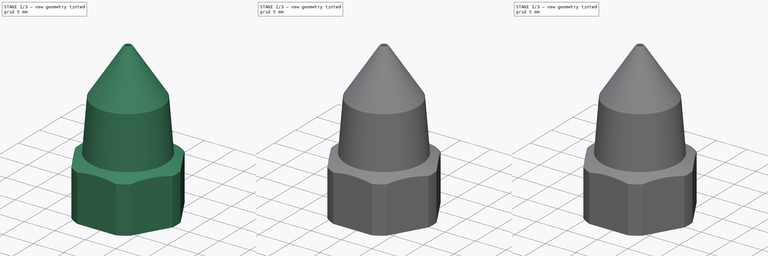
[diagram: build sequence overview — one tinted view per stage of 3, left to right]
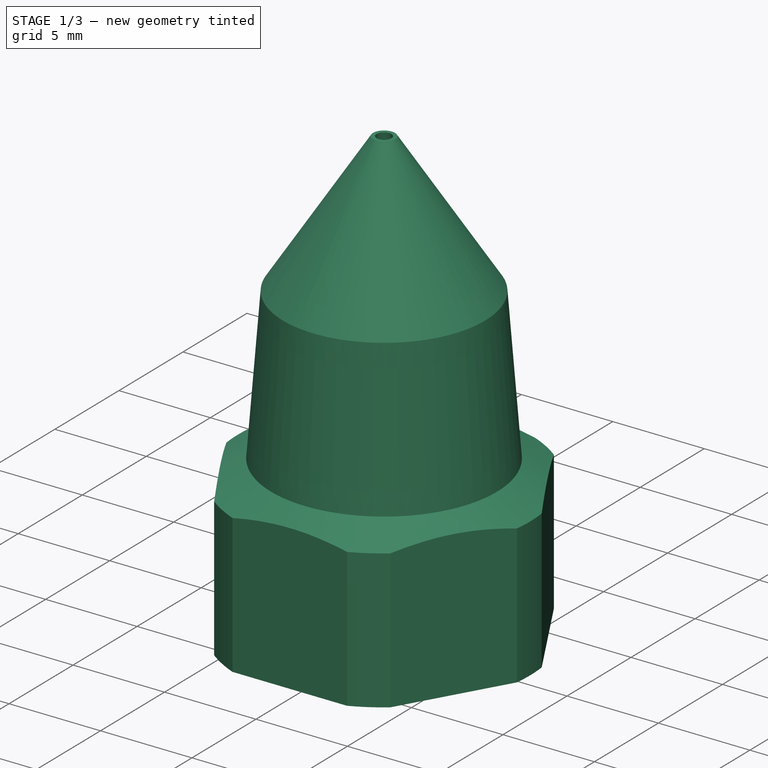
[diagram: stage 1 of 3 — iso view after this stage's code; geometry added in this stage tinted green]
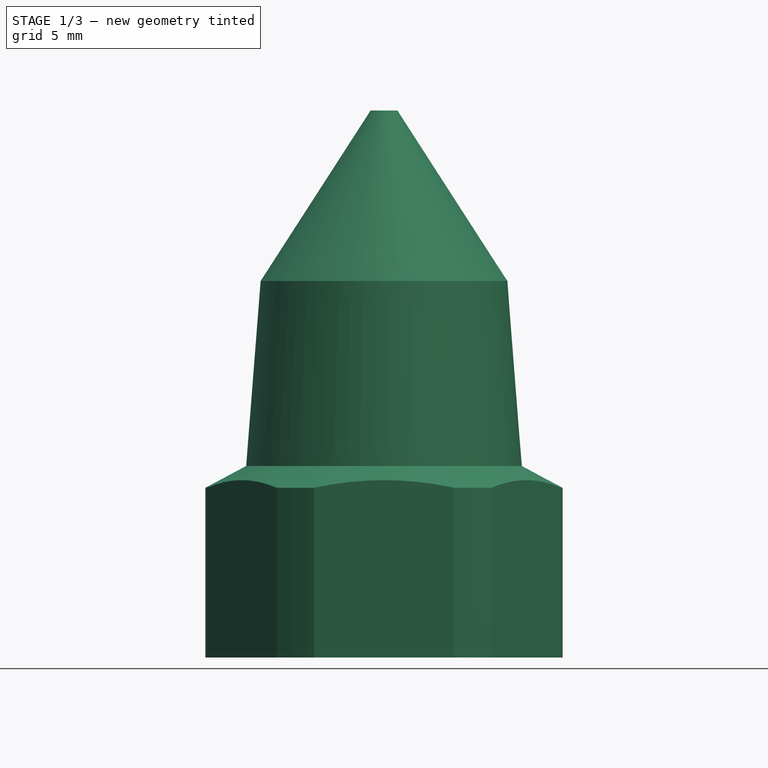
[diagram: stage 1 of 3 — front view after this stage's code; geometry added in this stage tinted green]
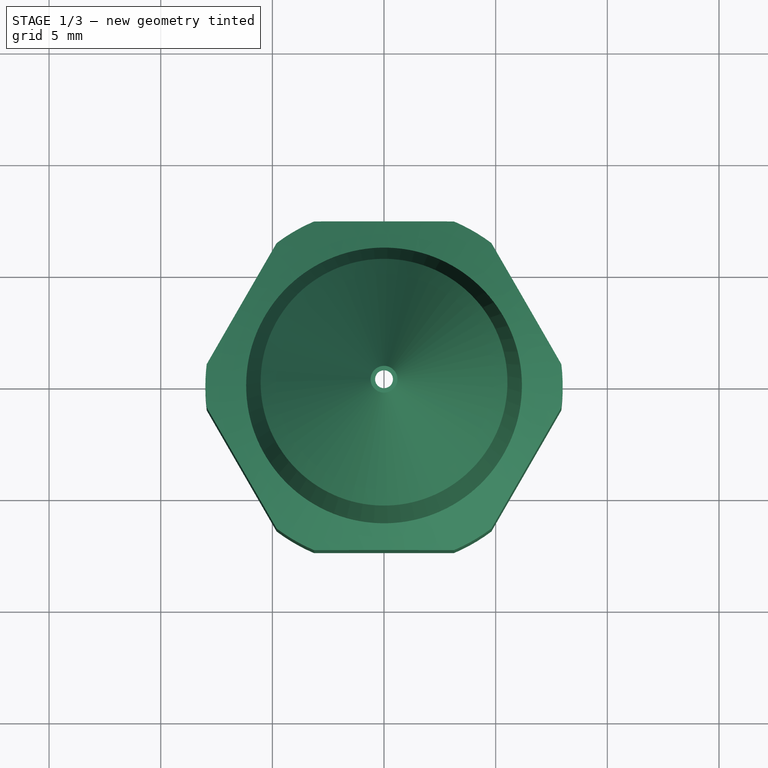
[diagram: stage 1 of 3 — top view after this stage's code; geometry added in this stage tinted green]
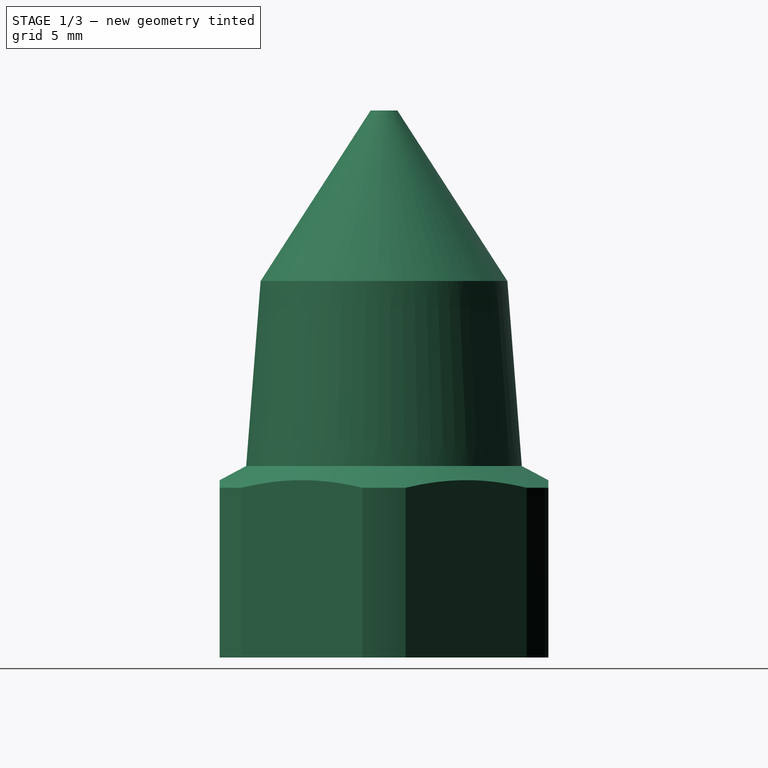
[diagram: stage 1 of 3 — right view after this stage's code; geometry added in this stage tinted green]
FCSTD DOCUMENT  (FreeCAD 0.18R15969 (Git))
Label: glue_adapter_1
License: All rights reserved
LicenseURL: http://en.wikipedia.org/wiki/All_rights_reserved
objects: Sketcher::SketchObject×6, PartDesign::Revolution×5, PartDesign::Pocket×1, PartDesign::Body×1
note: 19 computed .brp shape members not serialized (recipe doc carries the construction recipe); baked Part::Feature solids carry a one-line shape summary decoded from their .brp

FEATURE [Sketcher::SketchObject] Sketch
  MapMode = 5
  Placement = pos=(0,0,0) rot=(1,0,0;1.5708rad)
  Support = -> [XZ_Plane]
  sketch-geometry (14):
    g0: LineSegment StartX=-5.3 StartY=0 StartZ=0 EndX=-5.3 EndY=6 EndZ=0
    g1: LineSegment StartX=-5.3 StartY=0 StartZ=0 EndX=-8 EndY=0 EndZ=0
    g2: ArcOfCircle CenterX=-5.3 CenterY=7.55476 CenterZ=0 NormalX=0 NormalY=0 NormalZ=1 AngleXU=0 Radius=1.55476 StartAngle=4.71239 EndAngle=6.20495
    g3: LineSegment [constr] StartX=-5.3 StartY=7.55476 StartZ=0 EndX=-5.3 EndY=6 EndZ=0
    g4: LineSegment [constr] StartX=-5.3 StartY=7.55476 StartZ=0 EndX=-3.75 EndY=7.43324 EndZ=0
    g5: LineSegment StartX=-3.75 StartY=7.43324 StartZ=0 EndX=-3 EndY=17 EndZ=0
    g6: LineSegment StartX=-3 StartY=17 StartZ=0 EndX=-1.75 EndY=20.5 EndZ=0
    g7: LineSegment StartX=-1.75 StartY=20.5 StartZ=0 EndX=-1.25 EndY=20.5 EndZ=0
    g8: LineSegment StartX=-1.25 StartY=20.5 StartZ=0 EndX=-0.4 EndY=24.5 EndZ=0
    g9: LineSegment StartX=-0.4 StartY=24.5 StartZ=0 EndX=-0.6 EndY=24.5 EndZ=0
    g10: LineSegment StartX=-5.52656 StartY=16.8627 StartZ=0 EndX=-0.6 EndY=24.5 EndZ=0
    g11: LineSegment StartX=-5.52656 StartY=16.8627 StartZ=0 EndX=-6.17406 EndY=8.57815 EndZ=0
    g12: LineSegment StartX=-6.17406 StartY=8.57815 StartZ=0 EndX=-8 EndY=7.60349 EndZ=0
    g13: LineSegment StartX=-8 StartY=7.60349 StartZ=0 EndX=-8 EndY=0 EndZ=0
  constraints (35):
    c: PointOnObject(g0,g-1)
    c: Vertical(g0)
    c: DistanceX(g0,g-1) = 5.3
    c: DistanceY(g0,g0) = 6
    c: Coincident(g1,g0)
    c: Horizontal(g1)
    c: DistanceX(g1,g-1) = 8
    c: Coincident(g2,g0)
    c: Coincident(g3,g2)
    c: Coincident(g3,g0)
    c: Coincident(g4,g2)
    c: Coincident(g4,g2)
    c: Vertical(g3)
    c: DistanceX(g2,g-1) = 3.75
    c: DistanceX(g5,g-1) = 3
    c: Tangent(g5,g2) = -1.5708
    c: DistanceY(g0,g5) = 11
    c: Coincident(g6,g5)
    c: Coincident(g7,g6)
    c: Horizontal(g7)
    c: DistanceY(g6,g6) = 3.5
    c: DistanceX(g6,g-1) = 1.75
    c: DistanceX(g7,g7) = 0.5
    c: Coincident(g8,g7)
    c: DistanceX(g8,g-1) = 0.4
    c: Coincident(g9,g8)
    c: Horizontal(g9)
    c: DistanceX(g9,g9) = 0.2
    c: Coincident(g10,g9)
    c: DistanceY(g8,g8) = 4
    c: Coincident(g11,g10)
    c: Coincident(g12,g11)
    c: Coincident(g13,g12)
    c: Coincident(g13,g1)
    c: Vertical(g13)
FEATURE [PartDesign::Revolution] Revolution
  Angle = 360
  Axis = (0,2e-16,1)
  Base = (0,0,0)
  Placement = pos=(0,0,0) rot=(1,0,0;1.5708rad)
  Profile = -> Sketch
  ReferenceAxis = -> Sketch [V_Axis]
  Refine = true
FEATURE [Sketcher::SketchObject] Sketch001
  MapMode = 5
  Placement = pos=(0,0,0) rot=(1,0,0;3.14159rad)
  Support = -> [Revolution]
  sketch-geometry (8):
    g0: LineSegment StartX=8.5 StartY=0 StartZ=0 EndX=4.25 EndY=7.36122 EndZ=0
    g1: LineSegment StartX=4.25 StartY=7.36122 StartZ=0 EndX=-4.25 EndY=7.36122 EndZ=0
    g2: LineSegment StartX=-4.25 StartY=7.36122 StartZ=0 EndX=-8.5 EndY=9e-16 EndZ=0
    g3: LineSegment StartX=-8.5 StartY=5e-16 StartZ=0 EndX=-4.25 EndY=-7.36122 EndZ=0
    g4: LineSegment StartX=-4.25 StartY=-7.36122 StartZ=0 EndX=4.25 EndY=-7.36122 EndZ=0
    g5: LineSegment StartX=4.25 StartY=-7.36122 StartZ=0 EndX=8.5 EndY=0 EndZ=0
    g6: Circle [constr] CenterX=0 CenterY=0 CenterZ=0 NormalX=0 NormalY=0 NormalZ=1 AngleXU=0 Radius=8.5
    g7: Circle CenterX=0 CenterY=0 CenterZ=0 NormalX=0 NormalY=0 NormalZ=1 AngleXU=0 Radius=14.2915
  constraints (17):
    c: Coincident(g0,g1)
    c: Coincident(g1,g2)
    c: Coincident(g2,g3)
    c: Coincident(g3,g4)
    c: Coincident(g4,g5)
    c: Coincident(g5,g0)
    c: Equal(g0, g1-g5) x5
    c: PointOnObject(g0,g6)
    c: PointOnObject(g1,g6)
    c: PointOnObject(g2,g6)
    c: PointOnObject(g3,g6)
    c: PointOnObject(g4,g6)
    c: PointOnObject(g5,g6)
    c: Coincident(g6,g-1)
    c: PointOnObject(g5,g-1)
    c: DistanceX(g2,g0) = 17
    c: Coincident(g7,g-1)
FEATURE [PartDesign::Pocket] Pocket
  BaseFeature = -> Revolution
  Length = 5
  Length2 = 100
  Placement = pos=(0,0,0) rot=(1,0,0;1.5708rad)
  Profile = -> Sketch001
  Refine = true
  Type = 1
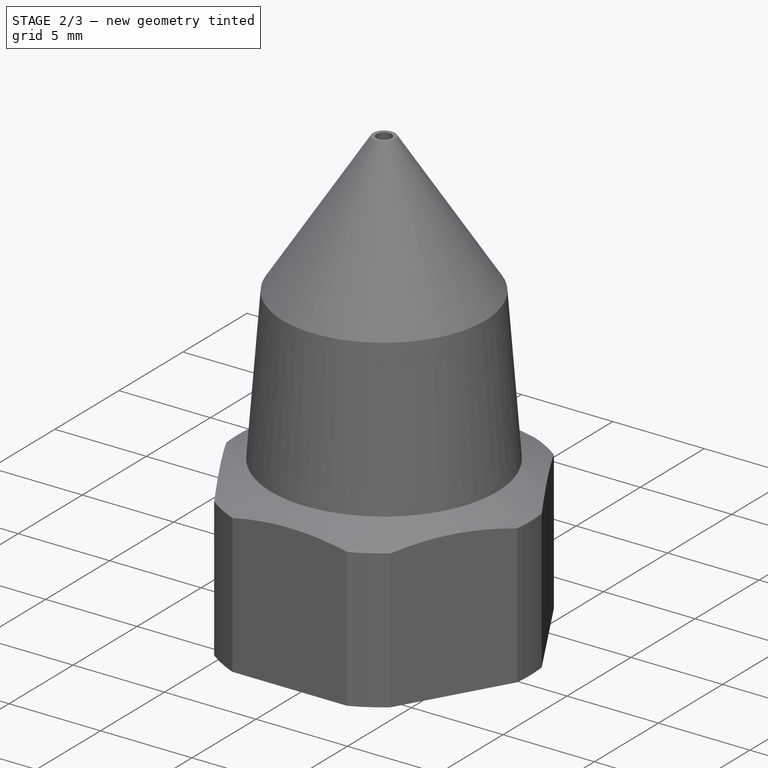
[diagram: stage 2 of 3 — iso view after this stage's code; geometry added in this stage tinted green]
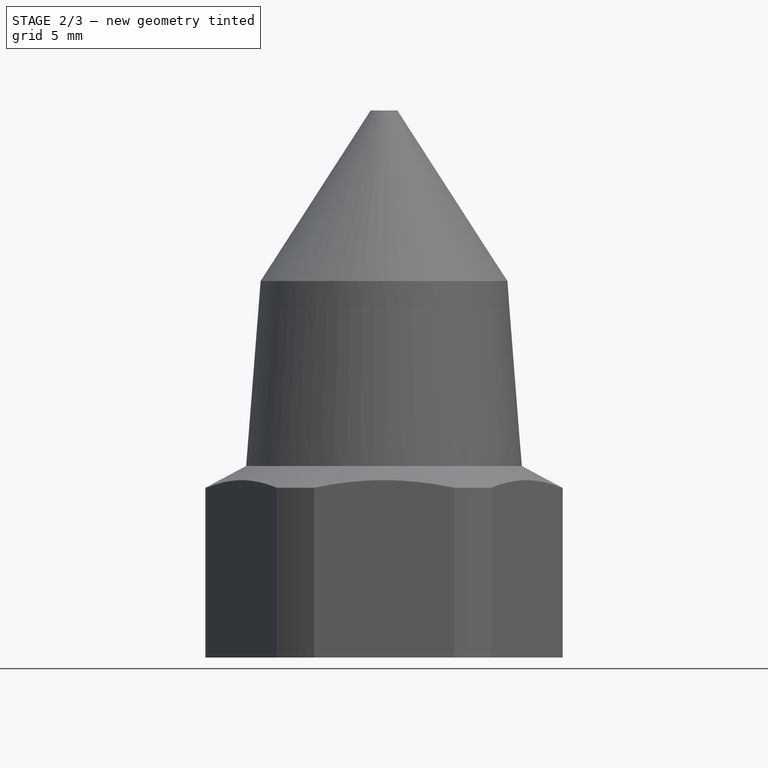
[diagram: stage 2 of 3 — front view after this stage's code; geometry added in this stage tinted green]
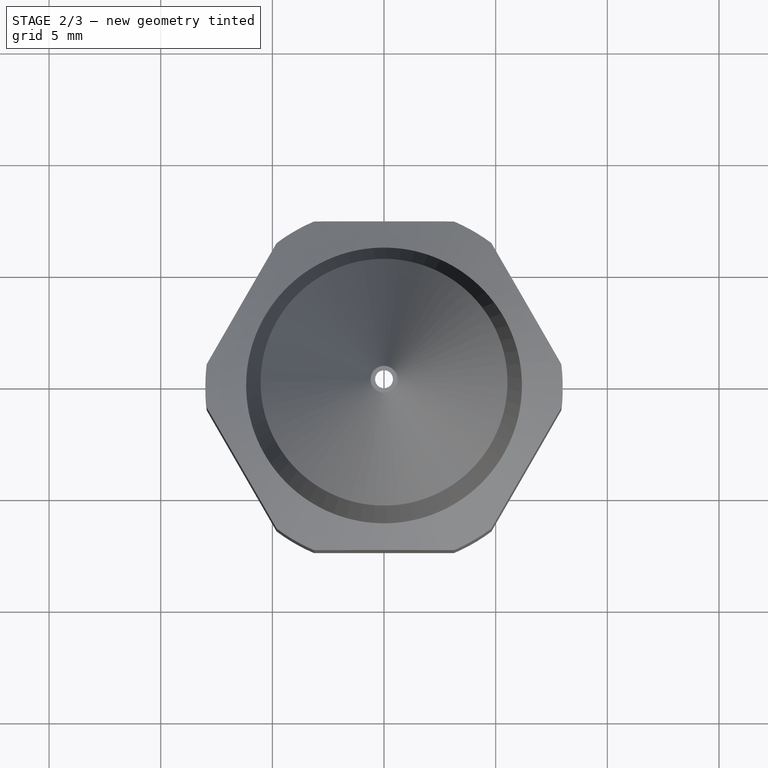
[diagram: stage 2 of 3 — top view after this stage's code; geometry added in this stage tinted green]
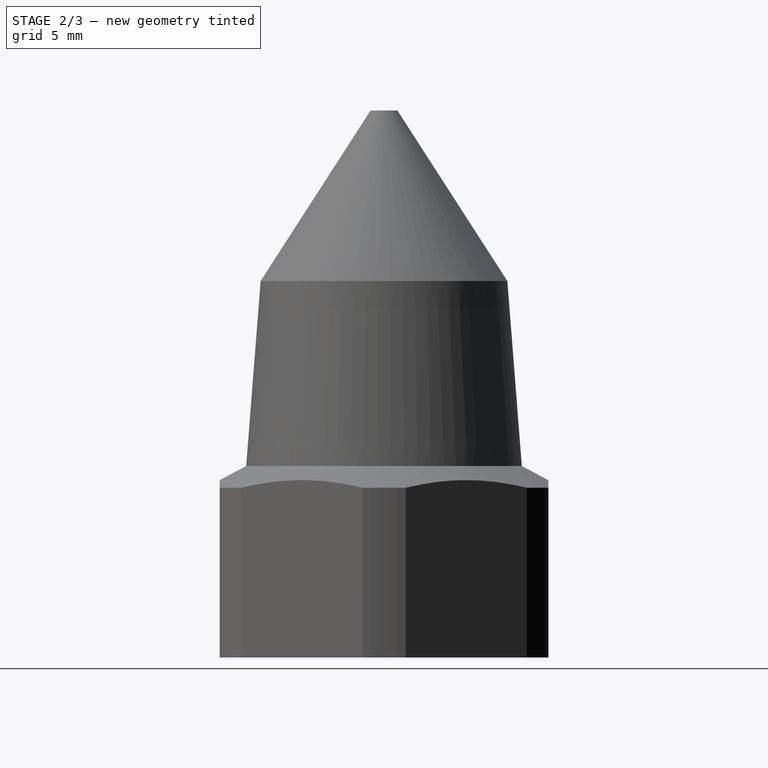
[diagram: stage 2 of 3 — right view after this stage's code; geometry added in this stage tinted green]
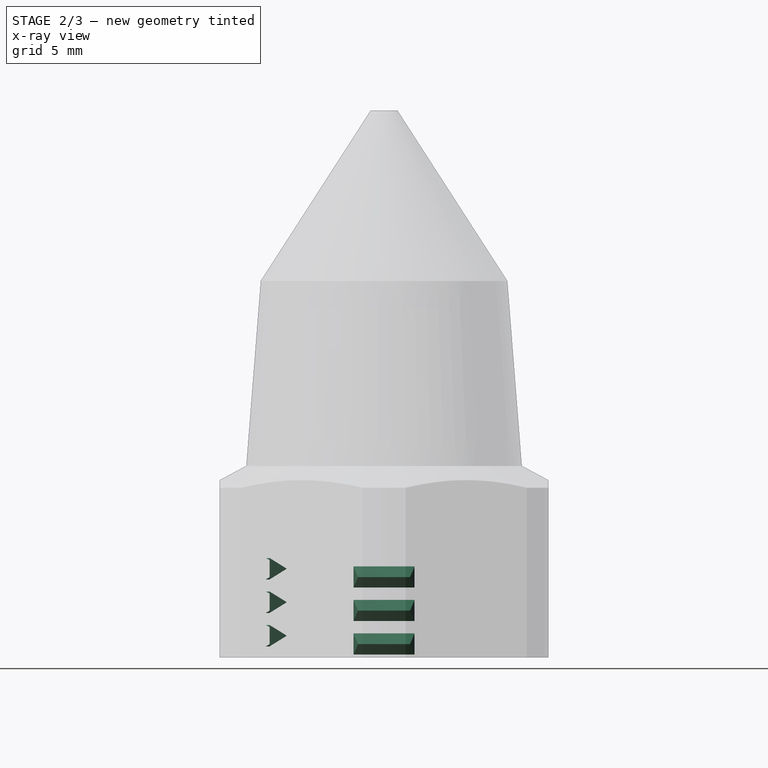
[diagram: stage 2 of 3 — x-ray composite at the right view; earlier geometry ghosted, this stage's added geometry solid]
FEATURE [Sketcher::SketchObject] Sketch002
  MapMode = 5
  Placement = pos=(0,0,0) rot=(1,0,0;1.5708rad)
  Support = -> [XZ_Plane]
  sketch-geometry (17):
    g0: LineSegment StartX=-5.5 StartY=0 StartZ=0 EndX=-4.5 EndY=0.6 EndZ=0
    g1: LineSegment StartX=-4.5 StartY=0.6 StartZ=0 EndX=-5.5 EndY=1.2 EndZ=0
    g2: LineSegment StartX=-5.5 StartY=0 StartZ=0 EndX=-6.5 EndY=0 EndZ=0
    g3: LineSegment StartX=-6.5 StartY=0 StartZ=0 EndX=-6.5 EndY=1.2 EndZ=0
    g4: LineSegment StartX=-6.5 StartY=1.2 StartZ=0 EndX=-5.5 EndY=1.2 EndZ=0
    g5: LineSegment StartX=-5.5 StartY=1.5 StartZ=0 EndX=-4.5 EndY=2.1 EndZ=0
    g6: LineSegment StartX=-4.5 StartY=2.1 StartZ=0 EndX=-5.5 EndY=2.7 EndZ=0
    g7: LineSegment StartX=-5.5 StartY=1.5 StartZ=0 EndX=-6.5 EndY=1.5 EndZ=0
    g8: LineSegment StartX=-6.5 StartY=1.5 StartZ=0 EndX=-6.5 EndY=2.7 EndZ=0
    g9: LineSegment StartX=-6.5 StartY=2.7 StartZ=0 EndX=-5.5 EndY=2.7 EndZ=0
    g10: LineSegment [constr] StartX=-5.5 StartY=0 StartZ=0 EndX=-5.5 EndY=1.5 EndZ=0
    g11: LineSegment StartX=-5.5 StartY=3 StartZ=0 EndX=-4.5 EndY=3.6 EndZ=0
    g12: LineSegment StartX=-4.5 StartY=3.6 StartZ=0 EndX=-5.5 EndY=4.2 EndZ=0
    g13: LineSegment StartX=-5.5 StartY=3 StartZ=0 EndX=-6.5 EndY=3 EndZ=0
    g14: LineSegment StartX=-6.5 StartY=3 StartZ=0 EndX=-6.5 EndY=4.2 EndZ=0
    g15: LineSegment StartX=-6.5 StartY=4.2 StartZ=0 EndX=-5.5 EndY=4.2 EndZ=0
    g16: LineSegment [constr] StartX=-5.5 StartY=1.5 StartZ=0 EndX=-5.5 EndY=3 EndZ=0
  constraints (49):
    c: PointOnObject(g0,g-1)
    c: Coincident(g1,g0)
    c: Coincident(g2,g0)
    c: PointOnObject(g2,g-1)
    c: Coincident(g3,g2)
    c: Coincident(g4,g3)
    c: Coincident(g4,g1)
    c: Horizontal(g4)
    c: Equal(g2,g4)
    c: Equal(g0,g1)
    c: Vertical(g3)
    c: DistanceX(g0,g0) = 1
    c: DistanceX(g0,g-1) = 5.5
    c: Coincident(g6,g5)
    c: Coincident(g7,g5)
    c: Coincident(g8,g7)
    c: Coincident(g9,g8)
    c: Coincident(g9,g6)
    c: Horizontal(g9)
    c: Equal(g7,g9)
    c: Equal(g5,g6)
    c: Vertical(g8)
    c: DistanceX(g5,g5) = 1
    c: Coincident(g0,g10)
    c: Coincident(g5,g10)
    c: Distance(g10) = 1.5
    c: Angle(g10) = 1.5708
    c: Coincident(g12,g11)
    c: Coincident(g13,g11)
    c: Coincident(g14,g13)
    c: Coincident(g15,g14)
    c: Coincident(g15,g12)
    c: Horizontal(g15)
    c: Equal(g13,g15)
    c: Equal(g11,g12)
    c: Vertical(g14)
    c: DistanceX(g11,g11) = 1
    c: Coincident(g5,g16)
    c: Coincident(g11,g16)
    c: Equal(g10,g16)
    c: Parallel(g16,g10)
    c: Horizontal(g7)
    c: Horizontal(g13)
    c: Equal(g8,g3)
    c: Equal(g3,g14)
    c: Equal(g7,g4)
    c: Equal(g9,g13)
    c: DistanceY(g3,g3) = 1.2
    c: DistanceX(g2,g2) = 1
FEATURE [Sketcher::SketchObject] Sketch003
  AttachmentOffset = pos=(0,0.375,0) rot=(0,1,0;1.5708rad)
  MapMode = 5
  Placement = pos=(0,1e-16,0.375) rot=(0.57735,0.57735,0.57735;2.0944rad)
  Support = -> [XZ_Plane]
  sketch-geometry (17):
    g0: LineSegment StartX=-5.5 StartY=0 StartZ=0 EndX=-4.5 EndY=0.6 EndZ=0
    g1: LineSegment StartX=-4.5 StartY=0.6 StartZ=0 EndX=-5.5 EndY=1.2 EndZ=0
    g2: LineSegment StartX=-5.5 StartY=0 StartZ=0 EndX=-6.5 EndY=0 EndZ=0
    g3: LineSegment StartX=-6.5 StartY=0 StartZ=0 EndX=-6.5 EndY=1.2 EndZ=0
    g4: LineSegment StartX=-6.5 StartY=1.2 StartZ=0 EndX=-5.5 EndY=1.2 EndZ=0
    g5: LineSegment StartX=-5.5 StartY=1.5 StartZ=0 EndX=-4.5 EndY=2.1 EndZ=0
    g6: LineSegment StartX=-4.5 StartY=2.1 StartZ=0 EndX=-5.5 EndY=2.7 EndZ=0
    g7: LineSegment StartX=-5.5 StartY=1.5 StartZ=0 EndX=-6.5 EndY=1.5 EndZ=0
    g8: LineSegment StartX=-6.5 StartY=1.5 StartZ=0 EndX=-6.5 EndY=2.7 EndZ=0
    g9: LineSegment StartX=-6.5 StartY=2.7 StartZ=0 EndX=-5.5 EndY=2.7 EndZ=0
    g10: LineSegment [constr] StartX=-5.5 StartY=0 StartZ=0 EndX=-5.5 EndY=1.5 EndZ=0
    g11: LineSegment StartX=-5.5 StartY=3 StartZ=0 EndX=-4.5 EndY=3.6 EndZ=0
    g12: LineSegment StartX=-4.5 StartY=3.6 StartZ=0 EndX=-5.5 EndY=4.2 EndZ=0
    g13: LineSegment StartX=-5.5 StartY=3 StartZ=0 EndX=-6.5 EndY=3 EndZ=0
    g14: LineSegment StartX=-6.5 StartY=3 StartZ=0 EndX=-6.5 EndY=4.2 EndZ=0
    g15: LineSegment StartX=-6.5 StartY=4.2 StartZ=0 EndX=-5.5 EndY=4.2 EndZ=0
    g16: LineSegment [constr] StartX=-5.5 StartY=1.5 StartZ=0 EndX=-5.5 EndY=3 EndZ=0
  constraints (49):
    c: PointOnObject(g0,g-1)
    c: Coincident(g1,g0)
    c: Coincident(g2,g0)
    c: PointOnObject(g2,g-1)
    c: Coincident(g3,g2)
    c: Coincident(g4,g3)
    c: Coincident(g4,g1)
    c: Horizontal(g4)
    c: Equal(g2,g4)
    c: Equal(g0,g1)
    c: Vertical(g3)
    c: DistanceX(g0,g0) = 1
    c: DistanceX(g0,g-1) = 5.5
    c: Coincident(g6,g5)
    c: Coincident(g7,g5)
    c: Coincident(g8,g7)
    c: Coincident(g9,g8)
    c: Coincident(g9,g6)
    c: Horizontal(g9)
    c: Equal(g7,g9)
    c: Equal(g5,g6)
    c: Vertical(g8)
    c: DistanceX(g5,g5) = 1
    c: Coincident(g0,g10)
    c: Coincident(g5,g10)
    c: Distance(g10) = 1.5
    c: Angle(g10) = 1.5708
    c: Coincident(g12,g11)
    c: Coincident(g13,g11)
    c: Coincident(g14,g13)
    c: Coincident(g15,g14)
    c: Coincident(g15,g12)
    c: Horizontal(g15)
    c: Equal(g13,g15)
    c: Equal(g11,g12)
    c: Vertical(g14)
    c: DistanceX(g11,g11) = 1
    c: Coincident(g5,g16)
    c: Coincident(g11,g16)
    c: Equal(g10,g16)
    c: Parallel(g16,g10)
    c: Horizontal(g7)
    c: Horizontal(g13)
    c: Equal(g8,g3)
    c: Equal(g3,g14)
    c: Equal(g7,g4)
    c: Equal(g9,g13)
    c: DistanceY(g3,g3) = 1.2
    c: DistanceX(g2,g2) = 1
FEATURE [Sketcher::SketchObject] Sketch004
  AttachmentOffset = pos=(0,0.75,0) rot=(0,1,0;3.14159rad)
  MapMode = 5
  Placement = pos=(0,2e-16,0.75) rot=(0,0.707107,0.707107;3.14159rad)
  Support = -> [XZ_Plane]
  sketch-geometry (17):
    g0: LineSegment StartX=-5.5 StartY=0 StartZ=0 EndX=-4.5 EndY=0.6 EndZ=0
    g1: LineSegment StartX=-4.5 StartY=0.6 StartZ=0 EndX=-5.5 EndY=1.2 EndZ=0
    g2: LineSegment StartX=-5.5 StartY=0 StartZ=0 EndX=-6.5 EndY=0 EndZ=0
    g3: LineSegment StartX=-6.5 StartY=0 StartZ=0 EndX=-6.5 EndY=1.2 EndZ=0
    g4: LineSegment StartX=-6.5 StartY=1.2 StartZ=0 EndX=-5.5 EndY=1.2 EndZ=0
    g5: LineSegment StartX=-5.5 StartY=1.5 StartZ=0 EndX=-4.5 EndY=2.1 EndZ=0
    g6: LineSegment StartX=-4.5 StartY=2.1 StartZ=0 EndX=-5.5 EndY=2.7 EndZ=0
    g7: LineSegment StartX=-5.5 StartY=1.5 StartZ=0 EndX=-6.5 EndY=1.5 EndZ=0
    g8: LineSegment StartX=-6.5 StartY=1.5 StartZ=0 EndX=-6.5 EndY=2.7 EndZ=0
    g9: LineSegment StartX=-6.5 StartY=2.7 StartZ=0 EndX=-5.5 EndY=2.7 EndZ=0
    g10: LineSegment [constr] StartX=-5.5 StartY=0 StartZ=0 EndX=-5.5 EndY=1.5 EndZ=0
    g11: LineSegment StartX=-5.5 StartY=3 StartZ=0 EndX=-4.5 EndY=3.6 EndZ=0
    g12: LineSegment StartX=-4.5 StartY=3.6 StartZ=0 EndX=-5.5 EndY=4.2 EndZ=0
    g13: LineSegment StartX=-5.5 StartY=3 StartZ=0 EndX=-6.5 EndY=3 EndZ=0
    g14: LineSegment StartX=-6.5 StartY=3 StartZ=0 EndX=-6.5 EndY=4.2 EndZ=0
    g15: LineSegment StartX=-6.5 StartY=4.2 StartZ=0 EndX=-5.5 EndY=4.2 EndZ=0
    g16: LineSegment [constr] StartX=-5.5 StartY=1.5 StartZ=0 EndX=-5.5 EndY=3 EndZ=0
  constraints (49):
    c: PointOnObject(g0,g-1)
    c: Coincident(g1,g0)
    c: Coincident(g2,g0)
    c: PointOnObject(g2,g-1)
    c: Coincident(g3,g2)
    c: Coincident(g4,g3)
    c: Coincident(g4,g1)
    c: Horizontal(g4)
    c: Equal(g2,g4)
    c: Equal(g0,g1)
    c: Vertical(g3)
    c: DistanceX(g0,g0) = 1
    c: DistanceX(g0,g-1) = 5.5
    c: Coincident(g6,g5)
    c: Coincident(g7,g5)
    c: Coincident(g8,g7)
    c: Coincident(g9,g8)
    c: Coincident(g9,g6)
    c: Horizontal(g9)
    c: Equal(g7,g9)
    c: Equal(g5,g6)
    c: Vertical(g8)
    c: DistanceX(g5,g5) = 1
    c: Coincident(g0,g10)
    c: Coincident(g5,g10)
    c: Distance(g10) = 1.5
    c: Angle(g10) = 1.5708
    c: Coincident(g12,g11)
    c: Coincident(g13,g11)
    c: Coincident(g14,g13)
    c: Coincident(g15,g14)
    c: Coincident(g15,g12)
    c: Horizontal(g15)
    c: Equal(g13,g15)
    c: Equal(g11,g12)
    c: Vertical(g14)
    c: DistanceX(g11,g11) = 1
    c: Coincident(g5,g16)
    c: Coincident(g11,g16)
    c: Equal(g10,g16)
    c: Parallel(g16,g10)
    c: Horizontal(g7)
    c: Horizontal(g13)
    c: Equal(g8,g3)
    c: Equal(g3,g14)
    c: Equal(g7,g4)
    c: Equal(g9,g13)
    c: DistanceY(g3,g3) = 1.2
    c: DistanceX(g2,g2) = 1
FEATURE [Sketcher::SketchObject] Sketch005
  AttachmentOffset = pos=(0,1.125,0) rot=(0,1,0;4.71239rad)
  MapMode = 5
  Placement = pos=(0,2e-16,1.125) rot=(-0.57735,0.57735,0.57735;4.18879rad)
  Support = -> [XZ_Plane]
  sketch-geometry (17):
    g0: LineSegment StartX=-5.5 StartY=0 StartZ=0 EndX=-4.5 EndY=0.6 EndZ=0
    g1: LineSegment StartX=-4.5 StartY=0.6 StartZ=0 EndX=-5.5 EndY=1.2 EndZ=0
    g2: LineSegment StartX=-5.5 StartY=0 StartZ=0 EndX=-6.5 EndY=0 EndZ=0
    g3: LineSegment StartX=-6.5 StartY=0 StartZ=0 EndX=-6.5 EndY=1.2 EndZ=0
    g4: LineSegment StartX=-6.5 StartY=1.2 StartZ=0 EndX=-5.5 EndY=1.2 EndZ=0
    g5: LineSegment StartX=-5.5 StartY=1.5 StartZ=0 EndX=-4.5 EndY=2.1 EndZ=0
    g6: LineSegment StartX=-4.5 StartY=2.1 StartZ=0 EndX=-5.5 EndY=2.7 EndZ=0
    g7: LineSegment StartX=-5.5 StartY=1.5 StartZ=0 EndX=-6.5 EndY=1.5 EndZ=0
    g8: LineSegment StartX=-6.5 StartY=1.5 StartZ=0 EndX=-6.5 EndY=2.7 EndZ=0
    g9: LineSegment StartX=-6.5 StartY=2.7 StartZ=0 EndX=-5.5 EndY=2.7 EndZ=0
    g10: LineSegment [constr] StartX=-5.5 StartY=0 StartZ=0 EndX=-5.5 EndY=1.5 EndZ=0
    g11: LineSegment StartX=-5.5 StartY=3 StartZ=0 EndX=-4.5 EndY=3.6 EndZ=0
    g12: LineSegment StartX=-4.5 StartY=3.6 StartZ=0 EndX=-5.5 EndY=4.2 EndZ=0
    g13: LineSegment StartX=-5.5 StartY=3 StartZ=0 EndX=-6.5 EndY=3 EndZ=0
    g14: LineSegment StartX=-6.5 StartY=3 StartZ=0 EndX=-6.5 EndY=4.2 EndZ=0
    g15: LineSegment StartX=-6.5 StartY=4.2 StartZ=0 EndX=-5.5 EndY=4.2 EndZ=0
    g16: LineSegment [constr] StartX=-5.5 StartY=1.5 StartZ=0 EndX=-5.5 EndY=3 EndZ=0
  constraints (49):
    c: PointOnObject(g0,g-1)
    c: Coincident(g1,g0)
    c: Coincident(g2,g0)
    c: PointOnObject(g2,g-1)
    c: Coincident(g3,g2)
    c: Coincident(g4,g3)
    c: Coincident(g4,g1)
    c: Horizontal(g4)
    c: Equal(g2,g4)
    c: Equal(g0,g1)
    c: Vertical(g3)
    c: DistanceX(g0,g0) = 1
    c: DistanceX(g0,g-1) = 5.5
    c: Coincident(g6,g5)
    c: Coincident(g7,g5)
    c: Coincident(g8,g7)
    c: Coincident(g9,g8)
    c: Coincident(g9,g6)
    c: Horizontal(g9)
    c: Equal(g7,g9)
    c: Equal(g5,g6)
    c: Vertical(g8)
    c: DistanceX(g5,g5) = 1
    c: Coincident(g0,g10)
    c: Coincident(g5,g10)
    c: Distance(g10) = 1.5
    c: Angle(g10) = 1.5708
    c: Coincident(g12,g11)
    c: Coincident(g13,g11)
    c: Coincident(g14,g13)
    c: Coincident(g15,g14)
    c: Coincident(g15,g12)
    c: Horizontal(g15)
    c: Equal(g13,g15)
    c: Equal(g11,g12)
    c: Vertical(g14)
    c: DistanceX(g11,g11) = 1
    c: Coincident(g5,g16)
    c: Coincident(g11,g16)
    c: Equal(g10,g16)
    c: Parallel(g16,g10)
    c: Horizontal(g7)
    c: Horizontal(g13)
    c: Equal(g8,g3)
    c: Equal(g3,g14)
    c: Equal(g7,g4)
    c: Equal(g9,g13)
    c: DistanceY(g3,g3) = 1.2
    c: DistanceX(g2,g2) = 1
FEATURE [PartDesign::Revolution] Revolution001
  Angle = 30
  Axis = (0,2e-16,1)
  Base = (0,0,0)
  BaseFeature = -> Pocket
  Midplane = true
  Placement = pos=(0,0,0) rot=(1,0,0;1.5708rad)
  Profile = -> Sketch002
  ReferenceAxis = -> Sketch002 [V_Axis]
  Refine = true
FEATURE [PartDesign::Revolution] Revolution002
  Angle = 30
  Axis = (0,2e-16,1)
  Base = (0,1e-16,0.375)
  BaseFeature = -> Revolution001
  Midplane = true
  Placement = pos=(0,0,0) rot=(1,0,0;1.5708rad)
  Profile = -> Sketch003
  ReferenceAxis = -> Sketch003 [V_Axis]
  Refine = true
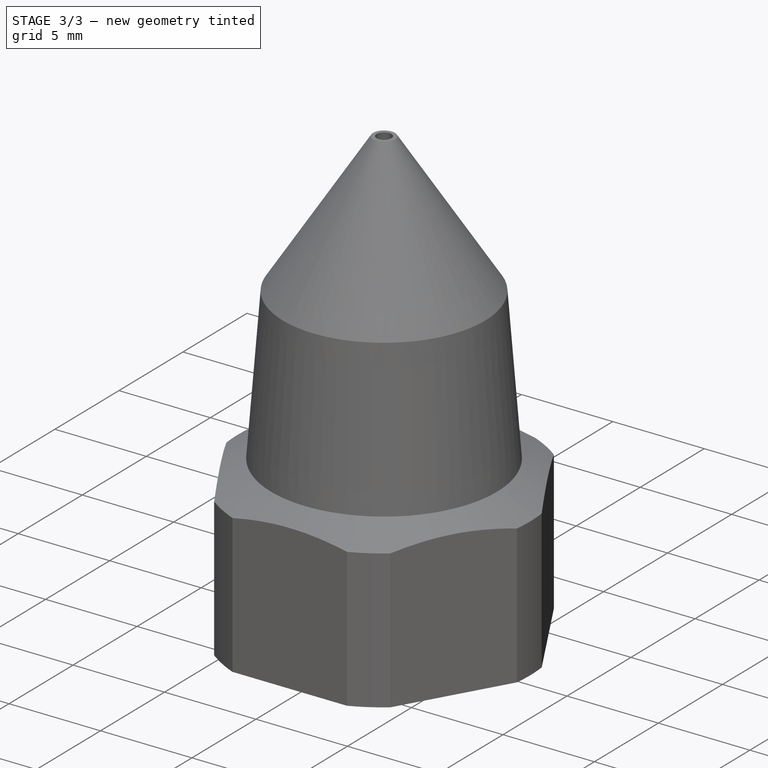
[diagram: stage 3 of 3 — iso view after this stage's code; geometry added in this stage tinted green]
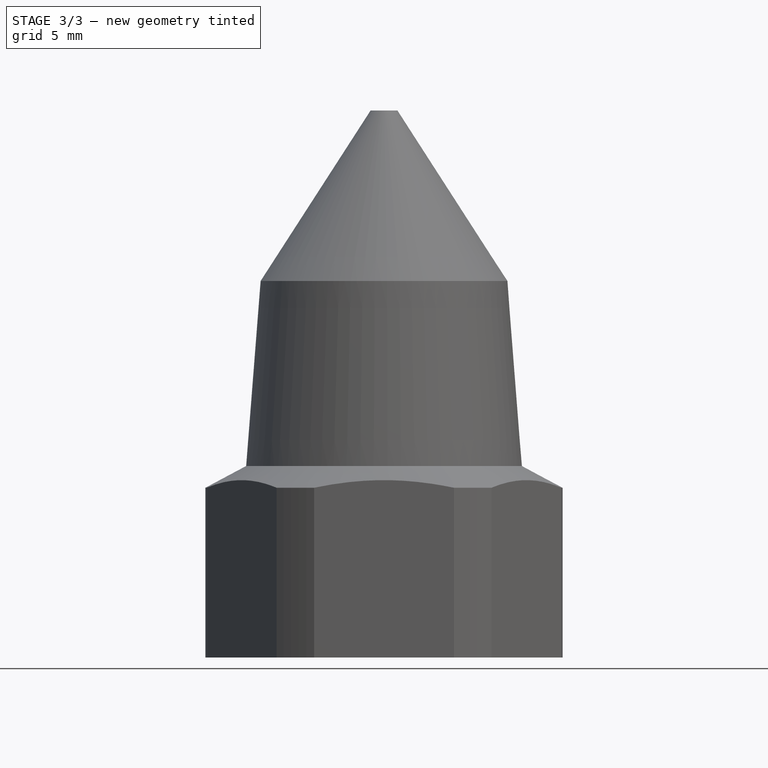
[diagram: stage 3 of 3 — front view after this stage's code; geometry added in this stage tinted green]
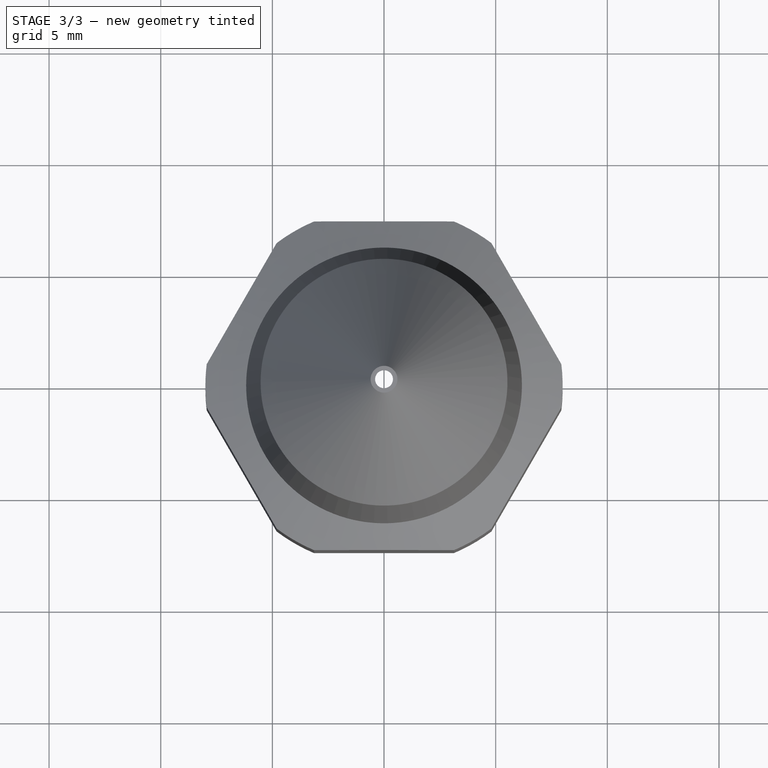
[diagram: stage 3 of 3 — top view after this stage's code; geometry added in this stage tinted green]
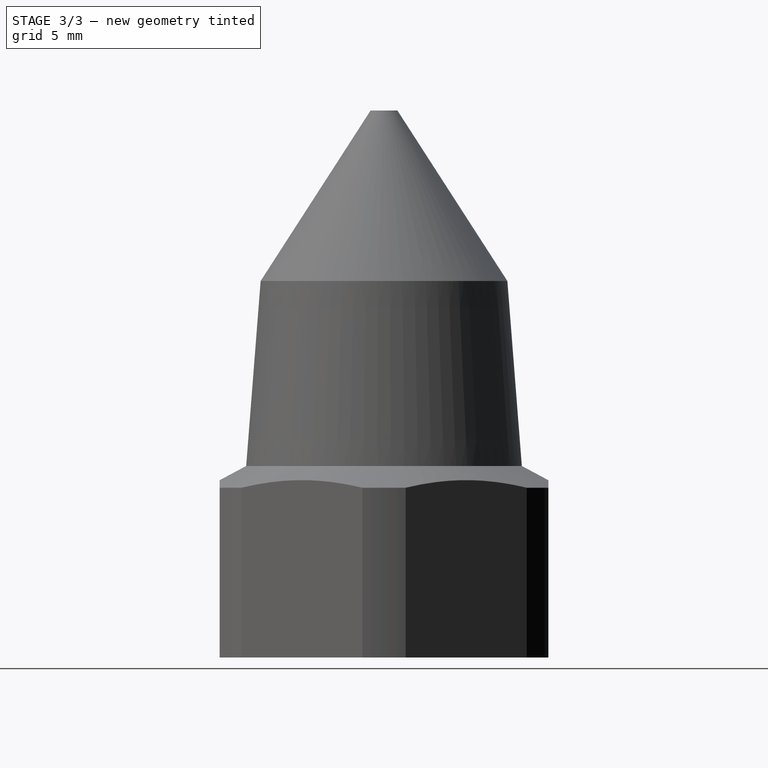
[diagram: stage 3 of 3 — right view after this stage's code; geometry added in this stage tinted green]
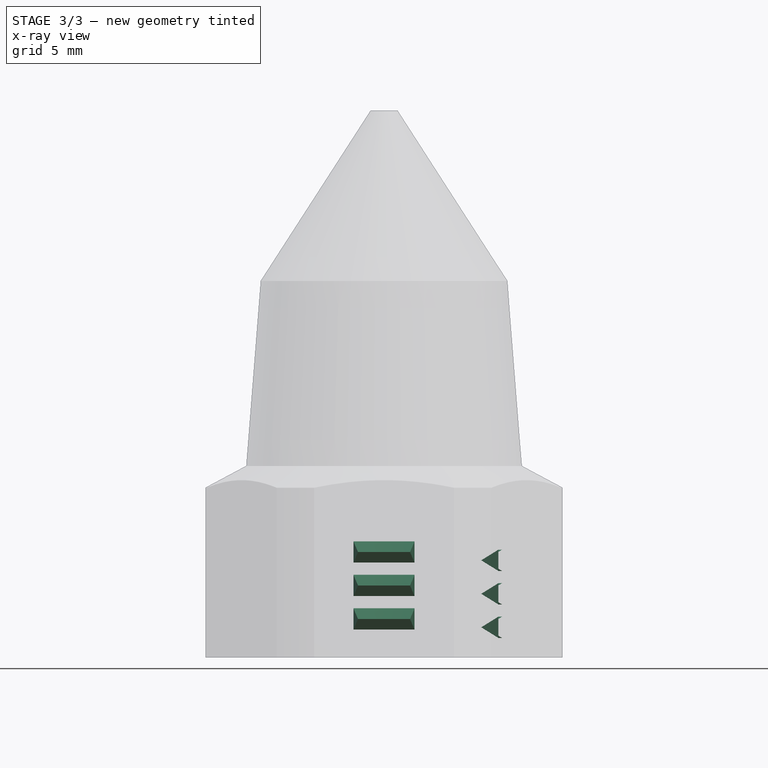
[diagram: stage 3 of 3 — x-ray composite at the front view; earlier geometry ghosted, this stage's added geometry solid]
FEATURE [PartDesign::Revolution] Revolution003
  Angle = 30
  Axis = (0,2e-16,1)
  Base = (0,2e-16,0.75)
  BaseFeature = -> Revolution002
  Midplane = true
  Placement = pos=(0,0,0) rot=(1,0,0;1.5708rad)
  Profile = -> Sketch004
  ReferenceAxis = -> Sketch004 [V_Axis]
  Refine = true
FEATURE [PartDesign::Revolution] Revolution004
  Angle = 30
  Axis = (0,2e-16,1)
  Base = (0,2e-16,1.125)
  BaseFeature = -> Revolution003
  Midplane = true
  Placement = pos=(0,0,0) rot=(1,0,0;1.5708rad)
  Profile = -> Sketch005
  ReferenceAxis = -> Sketch005 [V_Axis]
  Refine = true
FEATURE [PartDesign::Body] Body
  Group = -> [Sketch,Revolution,Sketch001,Pocket,Sketch002,Sketch003,Sketch004,Sketch005,Revolution001,Revolution002,Revolution003,Revolution004]
  Origin = -> Origin
  Tip = -> Revolution004
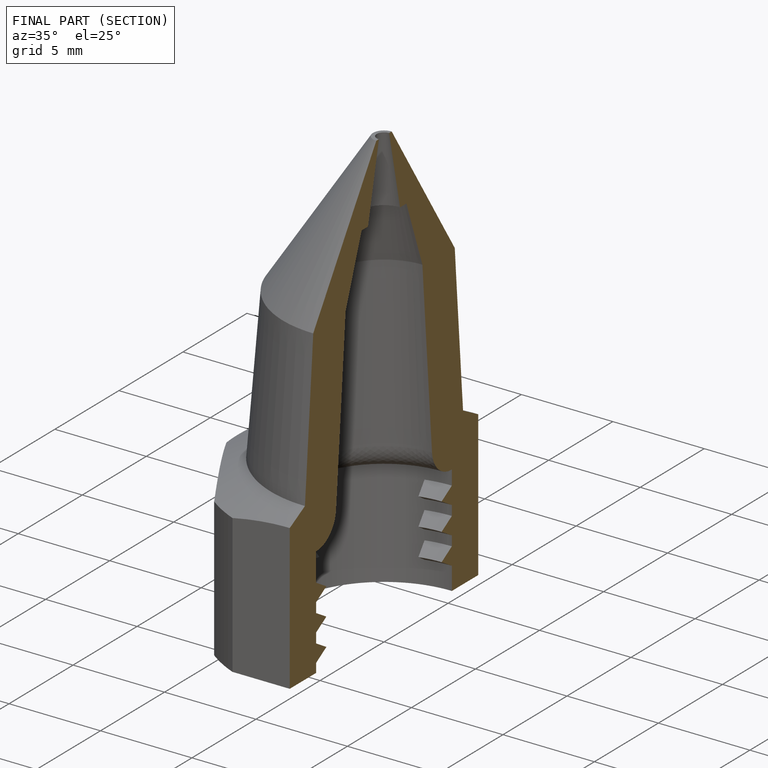
[diagram: finished part — half-section view (interior)]
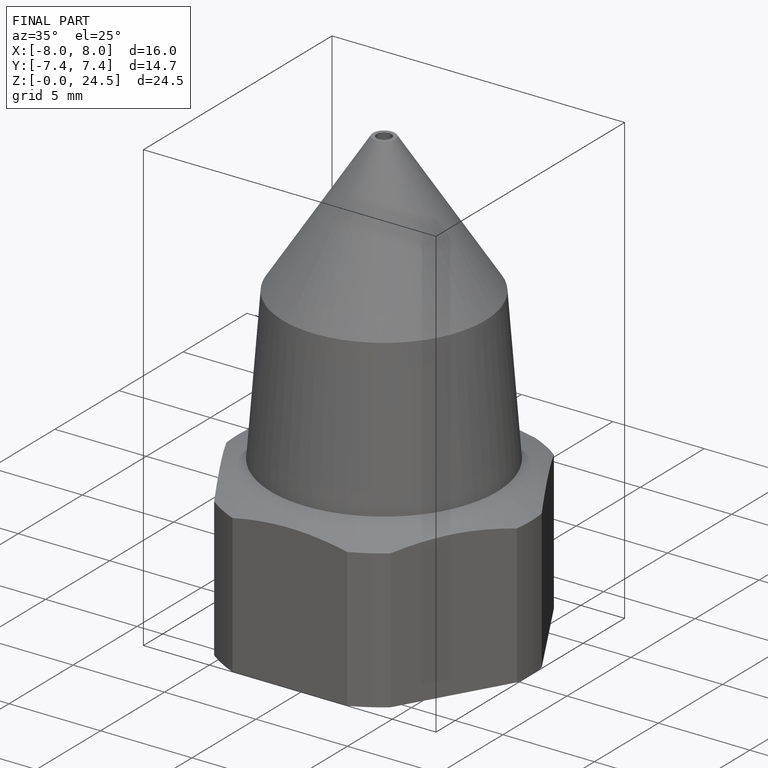
[diagram: finished part — iso view with bounding-box wireframe]
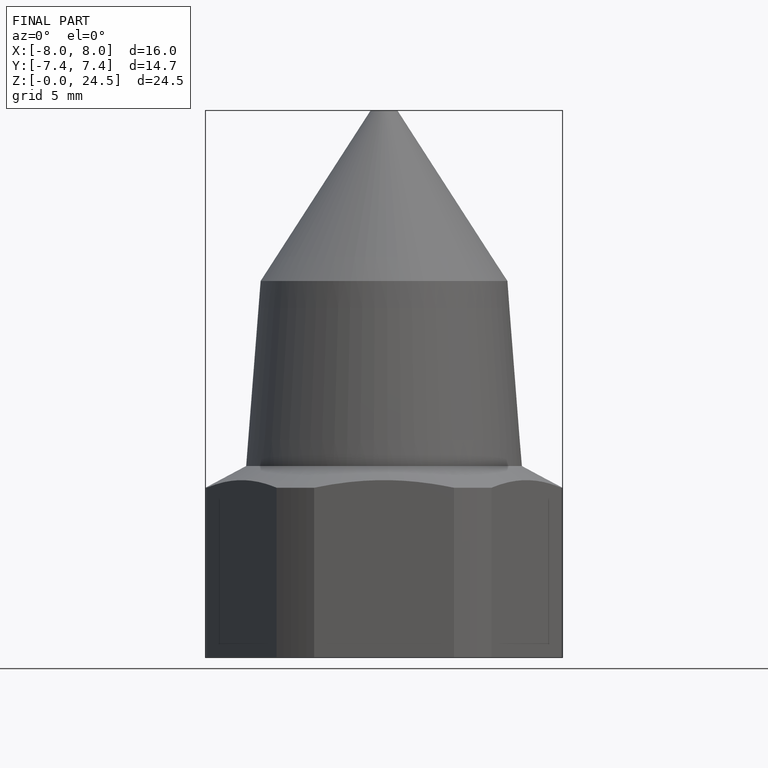
[diagram: finished part — front view with bounding-box wireframe]
